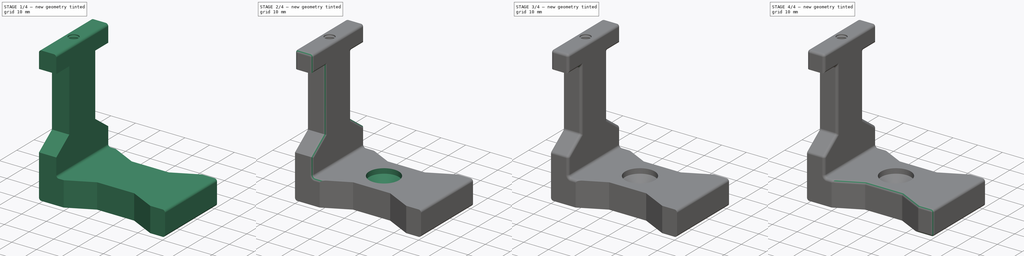
[diagram: build sequence overview — one tinted view per stage of 4, left to right]
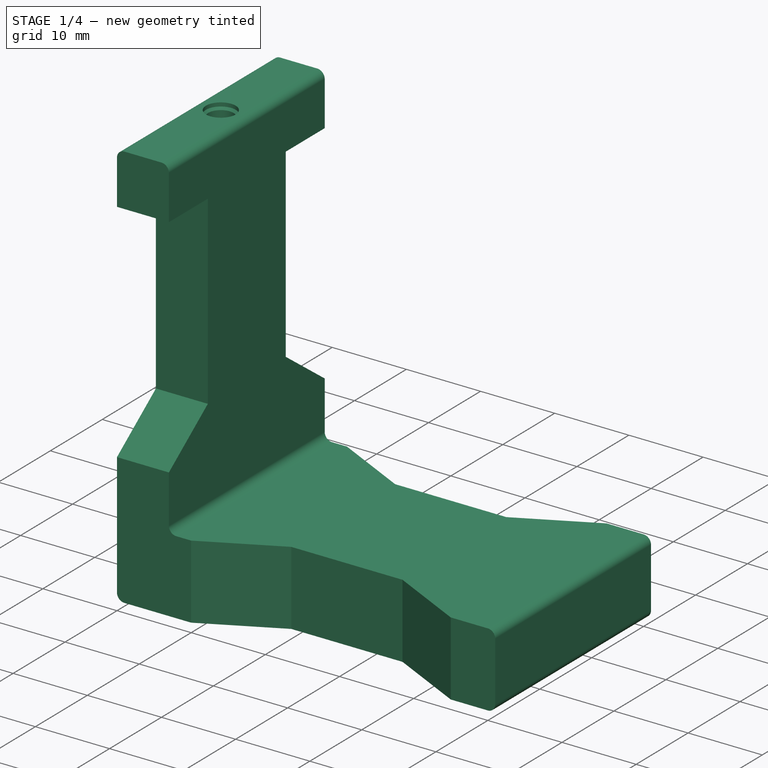
[diagram: stage 1 of 4 — iso view after this stage's code; geometry added in this stage tinted green]
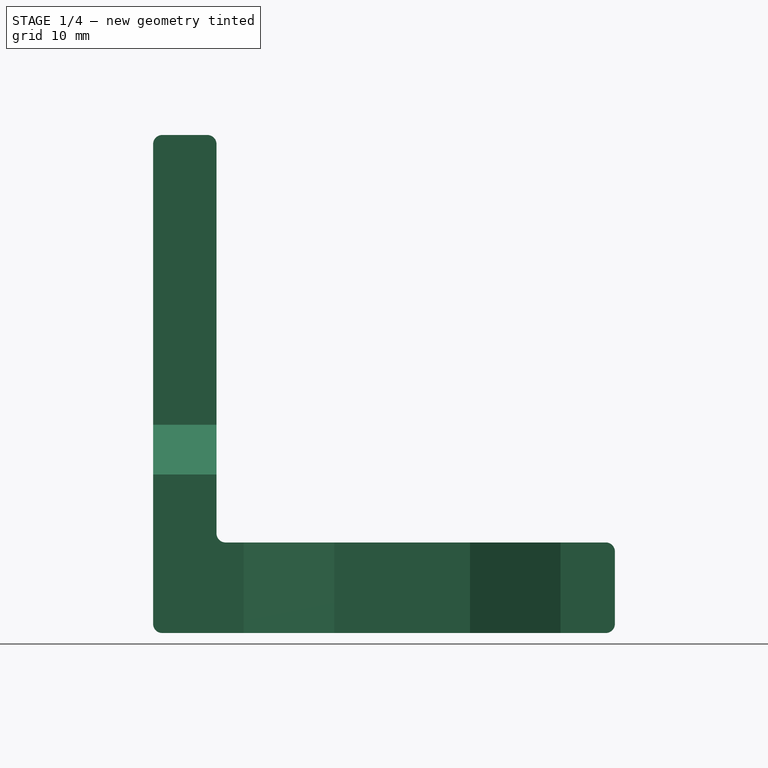
[diagram: stage 1 of 4 — front view after this stage's code; geometry added in this stage tinted green]
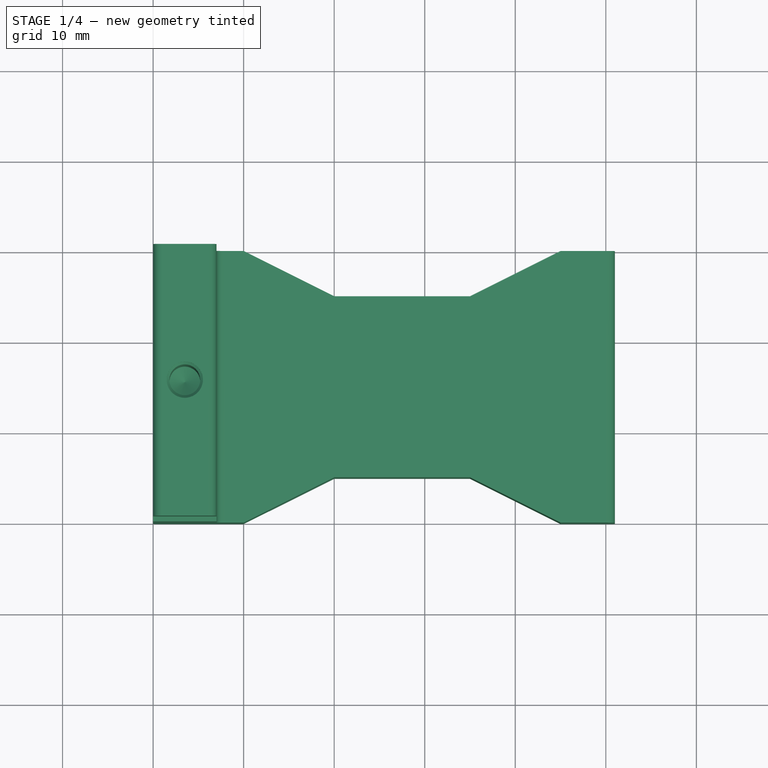
[diagram: stage 1 of 4 — top view after this stage's code; geometry added in this stage tinted green]
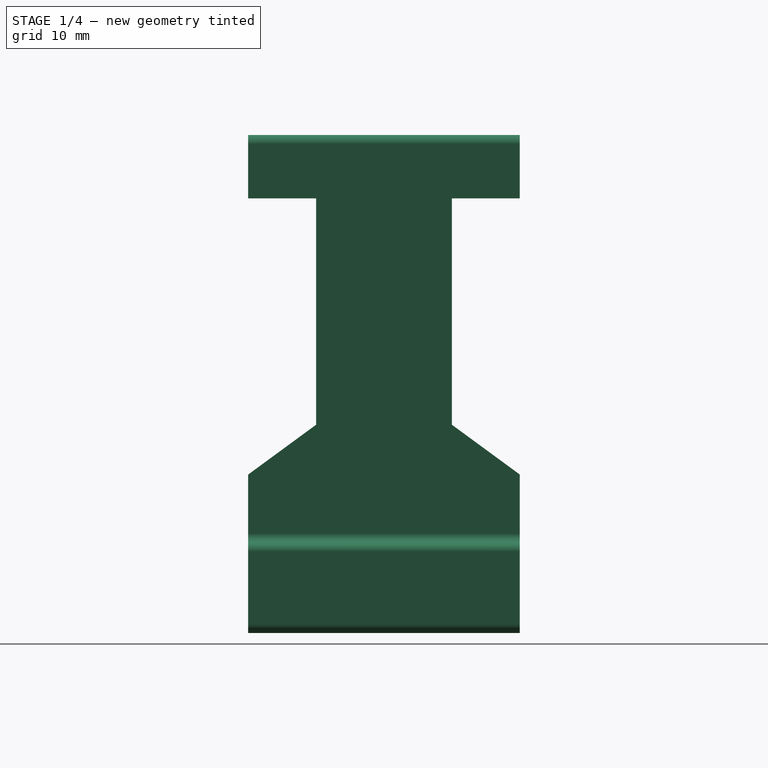
[diagram: stage 1 of 4 — right view after this stage's code; geometry added in this stage tinted green]
FCSTD DOCUMENT  (FreeCAD 0.21R33771 (Git))
Label: solow-wellhofer-connector-small
License: All rights reserved
LicenseURL: http://en.wikipedia.org/wiki/All_rights_reserved
objects: PartDesign::Fillet×9, Sketcher::SketchObject×5, PartDesign::Hole×2, PartDesign::Pocket×2, PartDesign::Pad×1, PartDesign::Body×1
note: 34 computed .brp shape members not serialized (recipe doc carries the construction recipe); baked Part::Feature solids carry a one-line shape summary decoded from their .brp

FEATURE [Sketcher::SketchObject] Sketch
  FullyConstrained = true
  MapMode = 5
  Placement = pos=(0,0,0) rot=(1,0,0;1.5708rad)
  Support = -> [XZ_Plane]
  sketch-geometry (12):
    g0: ArcOfCircle CenterX=50 CenterY=1 CenterZ=0 NormalX=0 NormalY=0 NormalZ=1 AngleXU=0 Radius=1 StartAngle=4.71239 EndAngle=6.28319
    g1: LineSegment StartX=51 StartY=1 StartZ=0 EndX=51 EndY=9 EndZ=0
    g2: ArcOfCircle CenterX=50 CenterY=9.00141 CenterZ=0 NormalX=0 NormalY=0 NormalZ=1 AngleXU=0 Radius=1 StartAngle=6.28178 EndAngle=7.90708
    g3: LineSegment StartX=49.9469 StartY=10 StartZ=0 EndX=8 EndY=10 EndZ=0
    g4: ArcOfCircle CenterX=8 CenterY=11 CenterZ=0 NormalX=0 NormalY=0 NormalZ=1 AngleXU=0 Radius=1 StartAngle=3.14159 EndAngle=4.71239
    g5: LineSegment StartX=7 StartY=11 StartZ=0 EndX=7 EndY=54 EndZ=0
    g6: ArcOfCircle CenterX=6 CenterY=54 CenterZ=0 NormalX=0 NormalY=0 NormalZ=1 AngleXU=0 Radius=1 StartAngle=6.28319 EndAngle=7.85398
    g7: LineSegment StartX=6 StartY=55 StartZ=0 EndX=1 EndY=55 EndZ=0
    g8: ArcOfCircle CenterX=1 CenterY=54 CenterZ=0 NormalX=0 NormalY=0 NormalZ=1 AngleXU=0 Radius=1 StartAngle=1.5708 EndAngle=3.14159
    g9: LineSegment StartX=6e-16 StartY=54 StartZ=0 EndX=2.4e-15 EndY=1 EndZ=0
    g10: ArcOfCircle CenterX=1 CenterY=1 CenterZ=0 NormalX=0 NormalY=0 NormalZ=1 AngleXU=0 Radius=1 StartAngle=3.14159 EndAngle=4.71239
    g11: LineSegment StartX=1 StartY=4.649e-13 StartZ=0 EndX=50 EndY=4.649e-13 EndZ=0
  constraints (39):
    c: Coincident(g0,g1)
    c: Vertical(g1)
    c: Coincident(g4,g5)
    c: Coincident(g6,g7)
    c: Horizontal(g7)
    c: Tangent(g7,g8) = -1.5708
    c: Tangent(g8,g9) = -1.5708
    c: Tangent(g9,g10) = -1.5708
    c: Coincident(g11,g10)
    c: Coincident(g11,g0)
    c: Horizontal(g11)
    c: Radius(g8) = 1
    c: DistanceY(g10,g-1) = 0
    c: DistanceY(g-1,g9) = 1
    c: DistanceX(g-1,g9) = 0
    c: DistanceX(g-1,g10) = 1
    c: DistanceX(g-1,g8) = 0
    c: DistanceX(g7,g7) = 5
    c: DistanceY(g-1,g8) = 54
    c: DistanceY(g0) = 1
    c: DistanceY(g0) = 1
    c: Radius(g0) = 1
    c: Coincident(g1,g2)
    c: DistanceX(g11,g11) = 49
    c: DistanceY(g6) = 54
    c: DistanceX(g-1,g6) = 6
    c: Coincident(g6,g5)
    c: DistanceX(g-1,g4) = 7
    c: DistanceX(g-1,g4) = 8
    c: DistanceY(g-1,g4) = 11
    c: DistanceY(g-1,g4) = 10
    c: Radius(g4) = 1
    c: Coincident(g4,g3)
    c: DistanceY(g5,g5) = 43
    c: DistanceY(g-1,g3) = 10
    c: Coincident(g3,g2)
    c: DistanceX(g-1,g2) = 50
    c: DistanceY(g-1,g1) = 9
    c: Radius(g2) = 1
FEATURE [PartDesign::Pad] Pad
  Direction = (0,-1,-2e-16)
  Length = 30
  Length2 = 10
  Placement = pos=(0,0,0) rot=(1,0,0;1.5708rad)
  Profile = -> Sketch
  ReferenceAxis = -> Sketch [N_Axis]
  Type = 0
FEATURE [Sketcher::SketchObject] Sketch001
  FullyConstrained = true
  MapMode = 5
  Placement = pos=(0,-1.2e-14,55) rot=(0,0,1;3.14159rad)
  sketch-geometry (1):
    g0: Circle CenterX=-3.5 CenterY=15 CenterZ=0 NormalX=0 NormalY=0 NormalZ=1 AngleXU=0 Radius=1.5
  constraints (3):
    c: DistanceX(g0,g-1) = 3.5
    c: DistanceY(g0) = 15
    c: Diameter(g0) = 3
FEATURE [PartDesign::Hole] Hole
  BaseFeature = -> Pad
  CustomThreadClearance = 0
  Depth = 15
  DepthType = 0
  Diameter = 3.4
  DrillForDepth = false
  DrillPoint = 1
  DrillPointAngle = 118
  HoleCutCountersinkAngle = 90
  HoleCutCustomValues = false
  HoleCutDepth = 0.5
  HoleCutDiameter = 4
  HoleCutType = 3
  ModelThread = false
  Placement = pos=(0,0,0) rot=(1,0,0;1.5708rad)
  Profile = -> Sketch001
  Tapered = false
  TaperedAngle = 90
  ThreadClass = 0
  ThreadDepth = 15
  ThreadDepthType = 0
  ThreadDirection = 0
  ThreadFit = 0
  ThreadSize = 9
  ThreadType = 1
  Threaded = false
  UseCustomThreadClearance = false
FEATURE [Sketcher::SketchObject] Sketch002
  FullyConstrained = true
  MapMode = 5
  Placement = pos=(7,0,0) rot=(0.707107,0,0.707107;3.14159rad)
  sketch-geometry (8):
    g0: LineSegment StartX=17.5 StartY=0 StartZ=0 EndX=23 EndY=7.5 EndZ=0
    g1: LineSegment StartX=23 StartY=7.5 StartZ=0 EndX=48 EndY=7.5 EndZ=0
    g2: LineSegment StartX=48 StartY=7.5 StartZ=0 EndX=48 EndY=0 EndZ=0
    g3: LineSegment StartX=17.5 StartY=0 StartZ=0 EndX=48 EndY=0 EndZ=0
    g4: LineSegment StartX=48 StartY=30 StartZ=0 EndX=17.5 EndY=30 EndZ=0
    g5: LineSegment StartX=17.5 StartY=30 StartZ=0 EndX=23 EndY=22.5 EndZ=0
    g6: LineSegment StartX=23 StartY=22.5 StartZ=0 EndX=48 EndY=22.5 EndZ=0
    g7: LineSegment StartX=48 StartY=22.5 StartZ=0 EndX=48 EndY=30 EndZ=0
  constraints (24):
    c: PointOnObject(g0,g-1)
    c: Coincident(g1,g0)
    c: Horizontal(g1)
    c: PointOnObject(g2,g-1)
    c: Coincident(g3,g0)
    c: Coincident(g3,g2)
    c: Horizontal(g4)
    c: Horizontal(g6)
    c: Coincident(g7,g4)
    c: DistanceY(g-1,g4) = 30
    c: DistanceY(g-1,g5) = 22.5
    c: DistanceY(g0,g0) = 7.5
    c: Coincident(g5,g6)
    c: Coincident(g6,g7)
    c: Coincident(g1,g2)
    c: DistanceX(g-1,g0) = 17.5
    c: DistanceX(g-1,g4) = 17.5
    c: Coincident(g5,g4)
    c: DistanceX(g5,g6) = 25
    c: DistanceX(g0,g1) = 25
    c: DistanceX(g-1,g1) = 48
    c: DistanceX(g-1,g6) = 48
    c: DistanceX(g-1,g2) = 48
    c: DistanceX(g-1,g4) = 48
FEATURE [Sketcher::SketchObject] Sketch003
  FullyConstrained = true
  MapMode = 5
  Placement = pos=(1.5e-13,-2e-15,10) rot=(0,0,1;3.14159rad)
  sketch-geometry (8):
    g0: LineSegment StartX=-10 StartY=0 StartZ=0 EndX=-20 EndY=5 EndZ=0
    g1: LineSegment StartX=-20 StartY=5 StartZ=0 EndX=-35 EndY=5 EndZ=0
    g2: LineSegment StartX=-35 StartY=5 StartZ=0 EndX=-45 EndY=0 EndZ=0
    g3: LineSegment StartX=-45 StartY=0 StartZ=0 EndX=-10 EndY=0 EndZ=0
    g4: LineSegment StartX=-10 StartY=30 StartZ=0 EndX=-20 EndY=25 EndZ=0
    g5: LineSegment StartX=-20 StartY=25 StartZ=0 EndX=-35 EndY=25 EndZ=0
    g6: LineSegment StartX=-35 StartY=25 StartZ=0 EndX=-45 EndY=30 EndZ=0
    g7: LineSegment StartX=-45 StartY=30 StartZ=0 EndX=-10 EndY=30 EndZ=0
  constraints (24):
    c: PointOnObject(g0,g-1)
    c: Coincident(g1,g0)
    c: Horizontal(g1)
    c: Coincident(g2,g1)
    c: PointOnObject(g2,g-1)
    c: Coincident(g3,g2)
    c: Coincident(g3,g0)
    c: Horizontal(g5)
    c: Coincident(g6,g5)
    c: Coincident(g7,g4)
    c: Horizontal(g7)
    c: DistanceX(g0,g-1) = 10
    c: DistanceX(g4,g-1) = 10
    c: DistanceX(g4,g-1) = 20
    c: DistanceX(g0,g-1) = 20
    c: DistanceX(g1,g0) = 15
    c: DistanceX(g5,g4) = 15
    c: Coincident(g5,g4)
    c: DistanceX(g2,g-1) = 45
    c: DistanceX(g6,g-1) = 45
    c: Coincident(g6,g7)
    c: DistanceY(g-1,g0) = 5
    c: DistanceY(g-1,g4) = 30
    c: DistanceY(g-1,g4) = 25
FEATURE [Sketcher::SketchObject] Sketch004
  FullyConstrained = true
  MapMode = 5
  Placement = pos=(1.5e-13,-2e-15,10) rot=(0,0,1;3.14159rad)
  sketch-geometry (1):
    g0: Circle CenterX=-25.5 CenterY=15 CenterZ=0 NormalX=0 NormalY=0 NormalZ=1 AngleXU=0 Radius=3
  constraints (3):
    c: DistanceX(g0,g-1) = 25.5
    c: DistanceY(g-1,g0) = 15
    c: Diameter(g0) = 6
FEATURE [PartDesign::Pocket] Pocket
  BaseFeature = -> Hole
  Direction = (-1,0,2e-16)
  Length = 5
  Length2 = 5
  Placement = pos=(0,0,0) rot=(1,0,0;1.5708rad)
  Profile = -> Sketch002
  ReferenceAxis = -> Sketch002 [N_Axis]
  Type = 1
FEATURE [PartDesign::Pocket] Pocket001
  BaseFeature = -> Pocket
  Direction = (-1.5e-14,0,-1)
  Length = 5
  Length2 = 5
  Placement = pos=(0,0,0) rot=(1,0,0;1.5708rad)
  Profile = -> Sketch003
  ReferenceAxis = -> Sketch003 [N_Axis]
  Type = 1
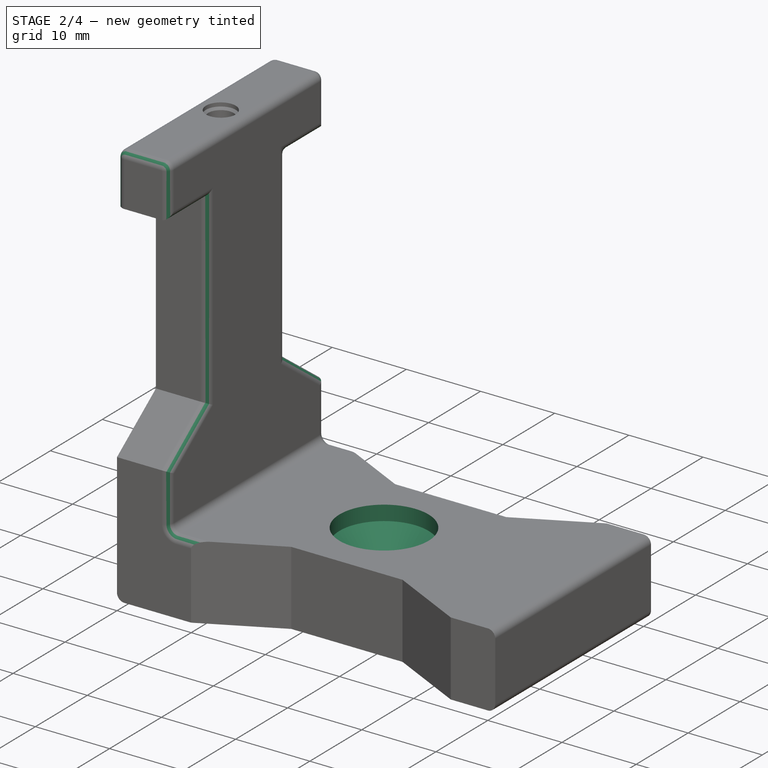
[diagram: stage 2 of 4 — iso view after this stage's code; geometry added in this stage tinted green]
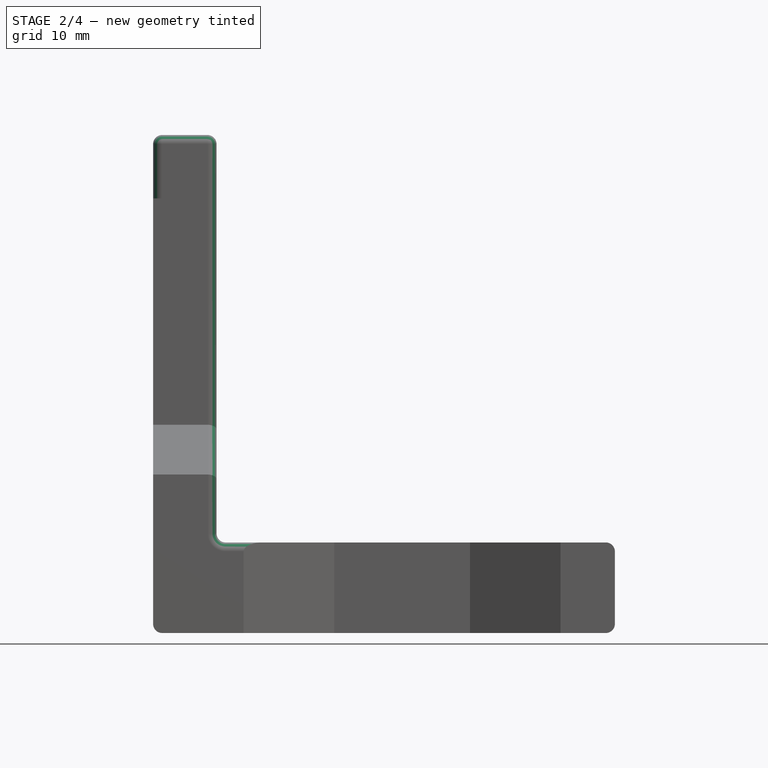
[diagram: stage 2 of 4 — front view after this stage's code; geometry added in this stage tinted green]
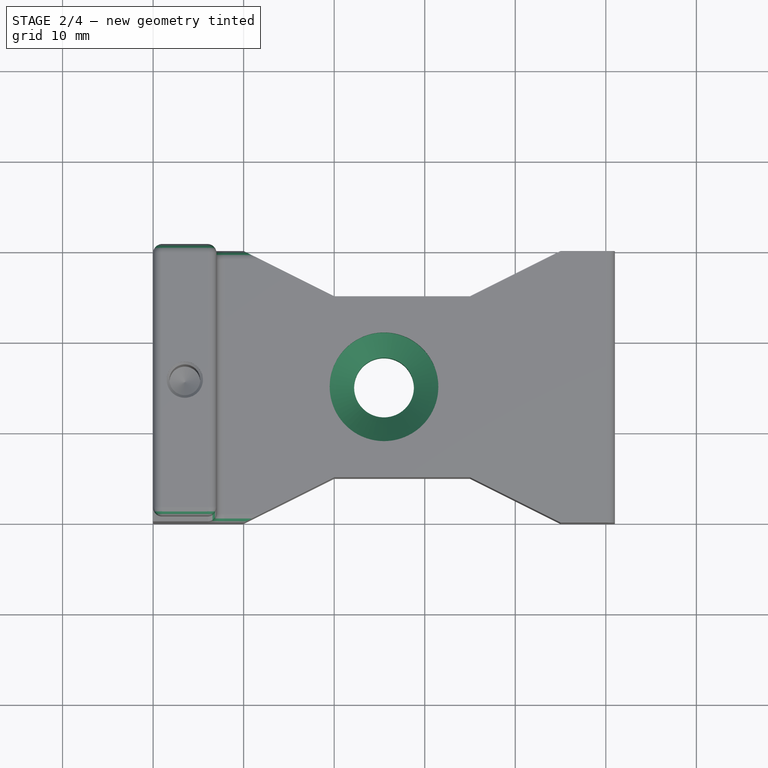
[diagram: stage 2 of 4 — top view after this stage's code; geometry added in this stage tinted green]
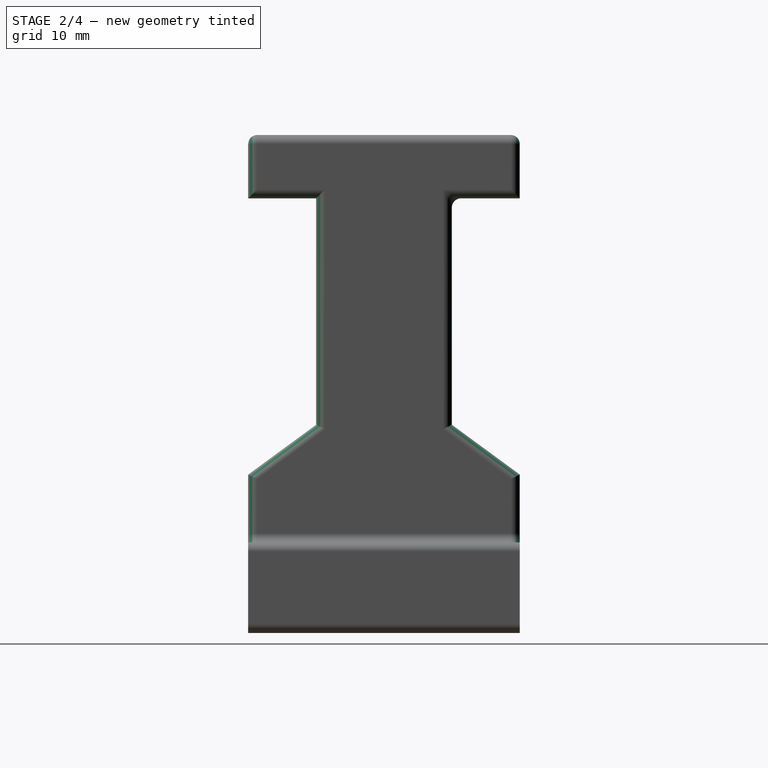
[diagram: stage 2 of 4 — right view after this stage's code; geometry added in this stage tinted green]
FEATURE [PartDesign::Hole] Hole001
  BaseFeature = -> Pocket001
  CustomThreadClearance = 0
  Depth = 163.183
  DepthType = 1
  Diameter = 6.6
  DrillForDepth = false
  DrillPoint = 1
  DrillPointAngle = 118
  HoleCutCountersinkAngle = 90
  HoleCutCustomValues = false
  HoleCutDepth = 2
  HoleCutDiameter = 12
  HoleCutType = 3
  ModelThread = false
  Placement = pos=(0,0,0) rot=(1,0,0;1.5708rad)
  Profile = -> Sketch004
  Tapered = false
  TaperedAngle = 90
  ThreadClass = 0
  ThreadDepth = 163.183
  ThreadDepthType = 0
  ThreadDirection = 0
  ThreadFit = 0
  ThreadSize = 14
  ThreadType = 1
  Threaded = false
  UseCustomThreadClearance = false
FEATURE [PartDesign::Fillet] Fillet
  Base = -> Hole001 [Edge64,Edge63,Edge59,Edge58,Edge57,Edge65,Edge40,Edge29,Edge62,Edge60]
  BaseFeature = -> Hole001
  Placement = pos=(0,0,0) rot=(1,0,0;1.5708rad)
  Radius = 1
  SupportTransform = false
  UseAllEdges = false
FEATURE [PartDesign::Fillet] Fillet001
  Base = -> Fillet [Edge91]
  BaseFeature = -> Fillet
  Placement = pos=(0,0,0) rot=(1,0,0;1.5708rad)
  Radius = 1
  SupportTransform = false
  UseAllEdges = false
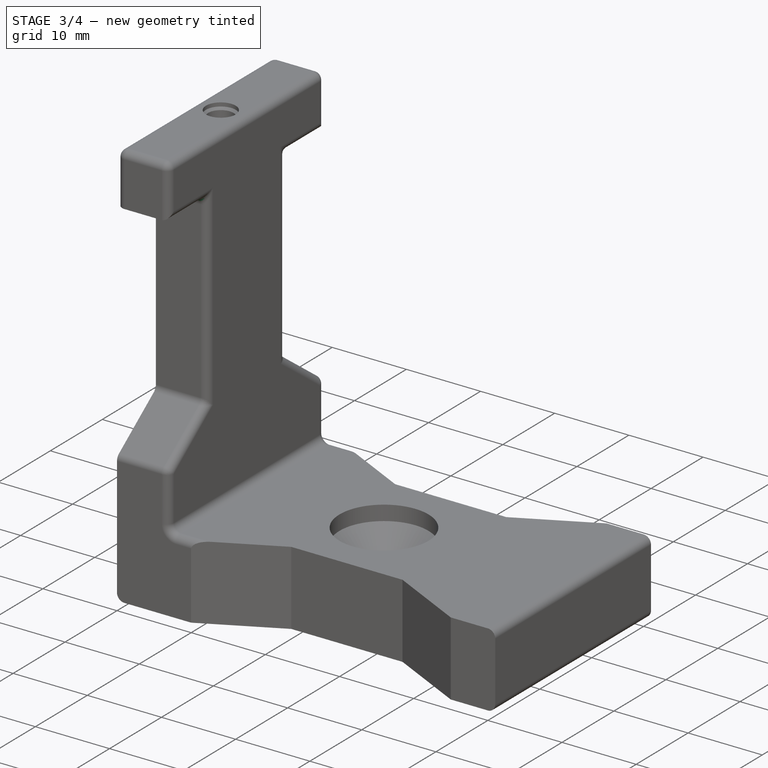
[diagram: stage 3 of 4 — iso view after this stage's code; geometry added in this stage tinted green]
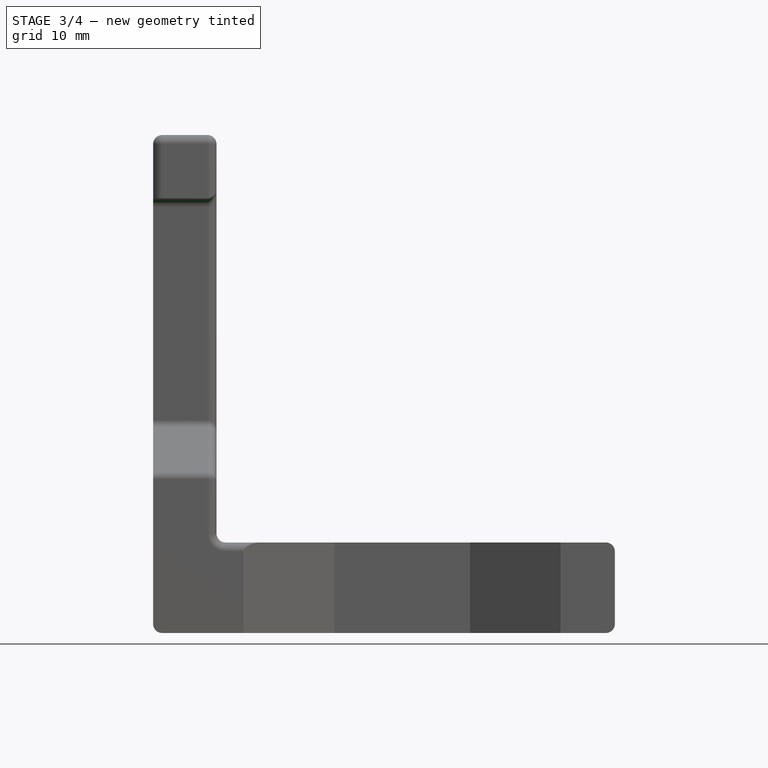
[diagram: stage 3 of 4 — front view after this stage's code; geometry added in this stage tinted green]
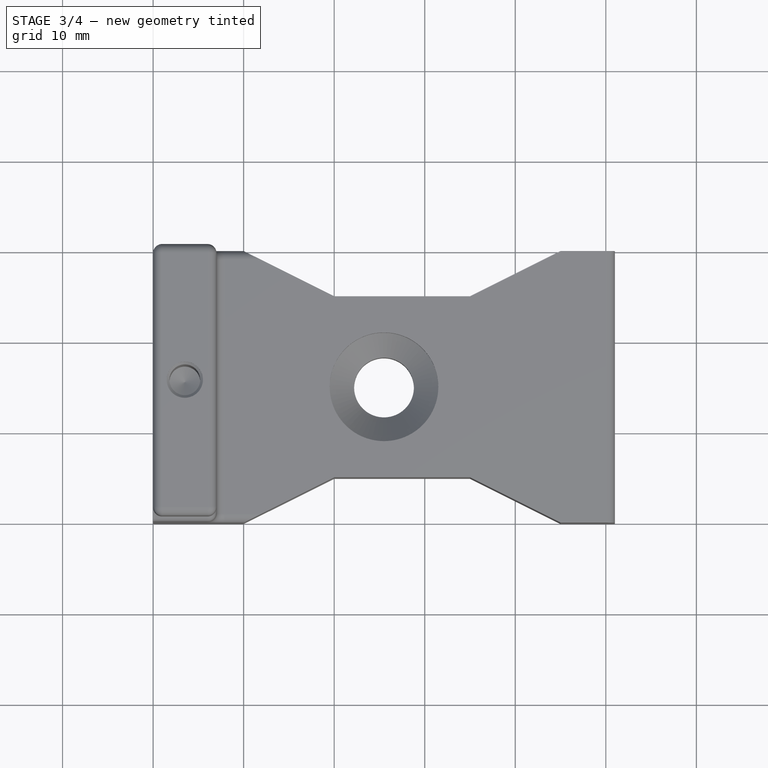
[diagram: stage 3 of 4 — top view after this stage's code; geometry added in this stage tinted green]
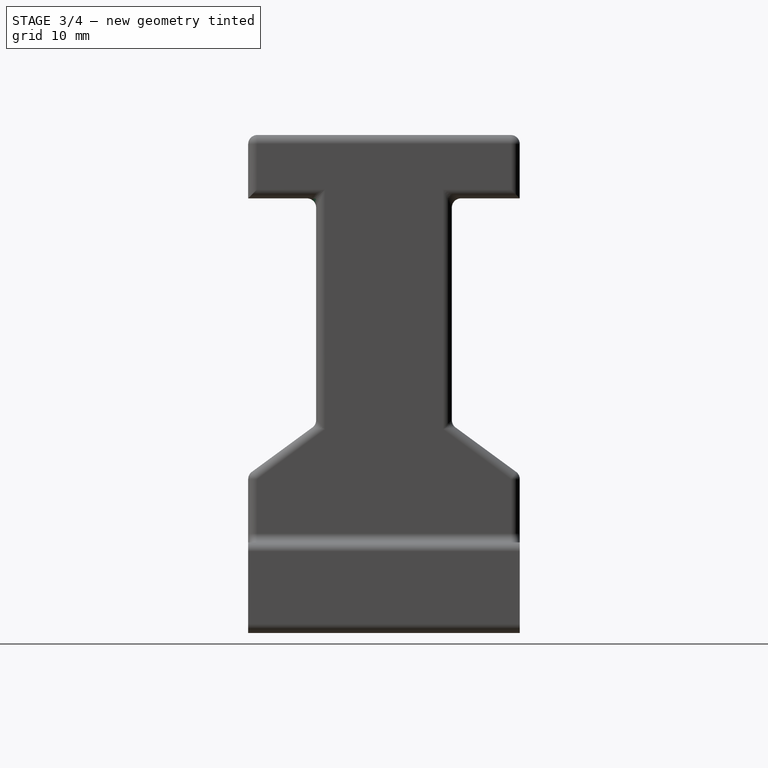
[diagram: stage 3 of 4 — right view after this stage's code; geometry added in this stage tinted green]
FEATURE [PartDesign::Fillet] Fillet002
  Base = -> Fillet001 [Edge40]
  BaseFeature = -> Fillet001
  Placement = pos=(0,0,0) rot=(1,0,0;1.5708rad)
  Radius = 1
  SupportTransform = false
  UseAllEdges = false
FEATURE [PartDesign::Fillet] Fillet003
  Base = -> Fillet002 [Edge53,Edge51]
  BaseFeature = -> Fillet002
  Placement = pos=(0,0,0) rot=(1,0,0;1.5708rad)
  Radius = 1
  SupportTransform = false
  UseAllEdges = false
FEATURE [PartDesign::Fillet] Fillet004
  Base = -> Fillet003 [Edge38,Edge35]
  BaseFeature = -> Fillet003
  Placement = pos=(0,0,0) rot=(1,0,0;1.5708rad)
  Radius = 1
  SupportTransform = false
  UseAllEdges = false
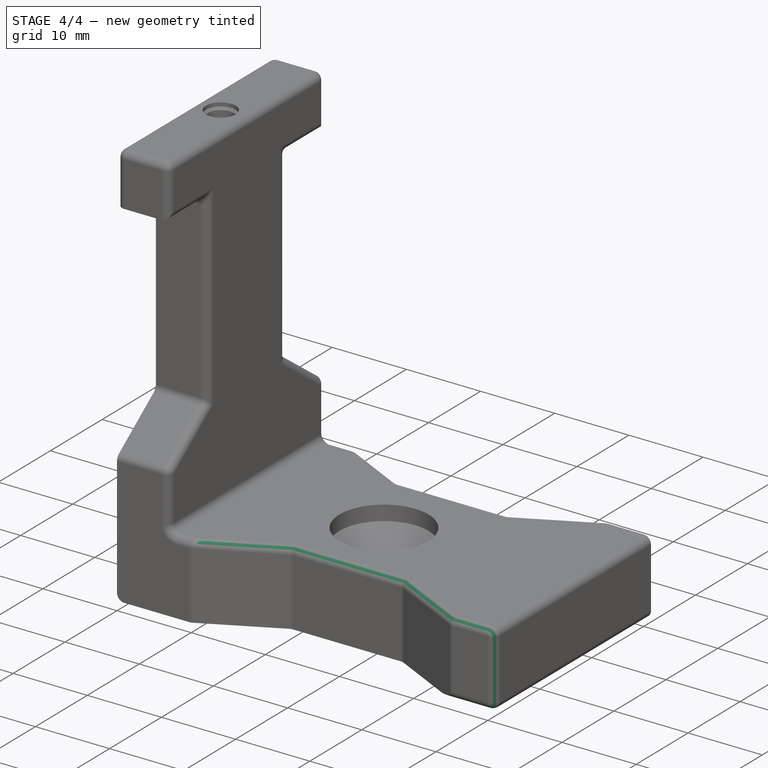
[diagram: stage 4 of 4 — iso view after this stage's code; geometry added in this stage tinted green]
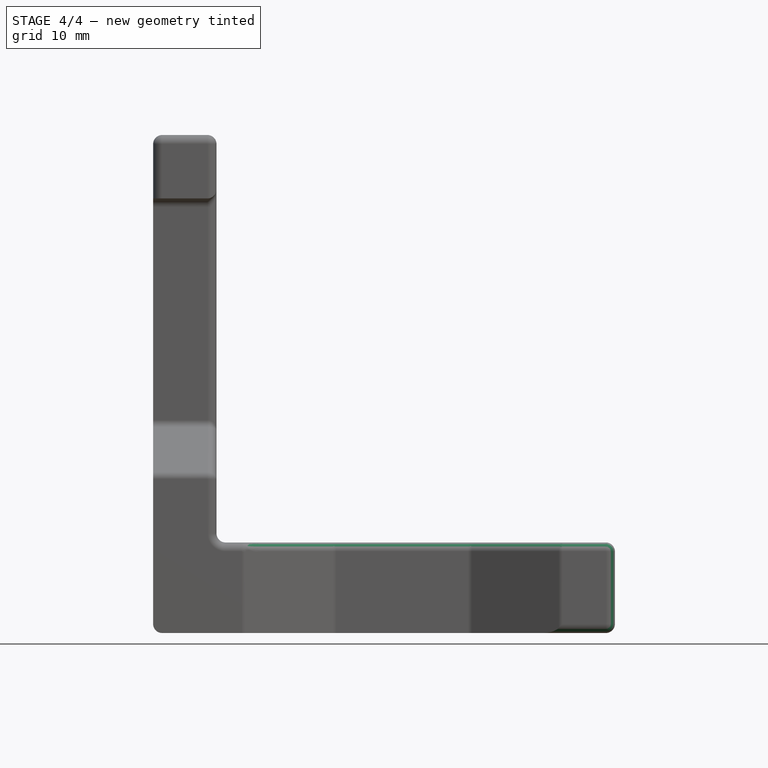
[diagram: stage 4 of 4 — front view after this stage's code; geometry added in this stage tinted green]
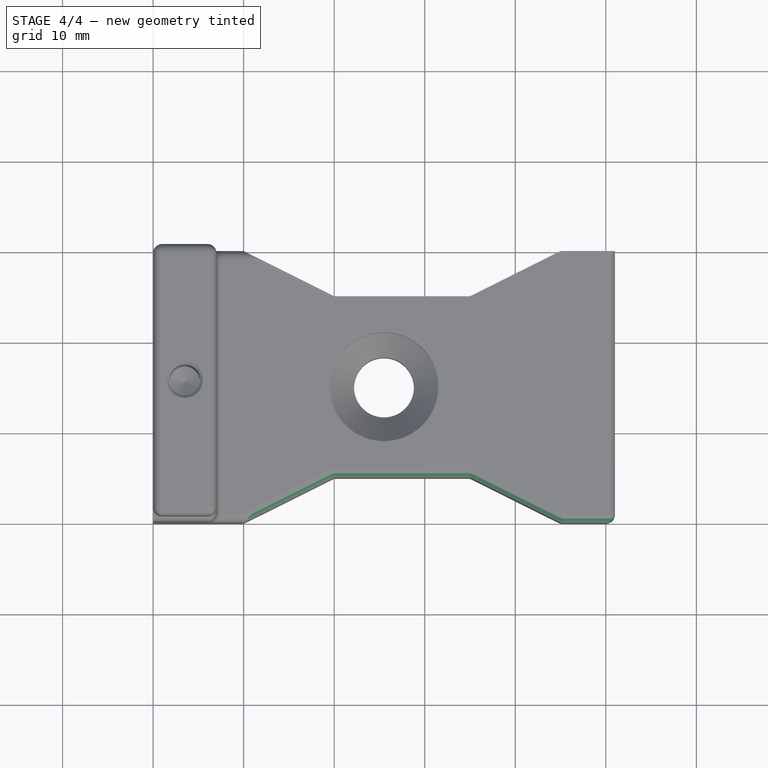
[diagram: stage 4 of 4 — top view after this stage's code; geometry added in this stage tinted green]
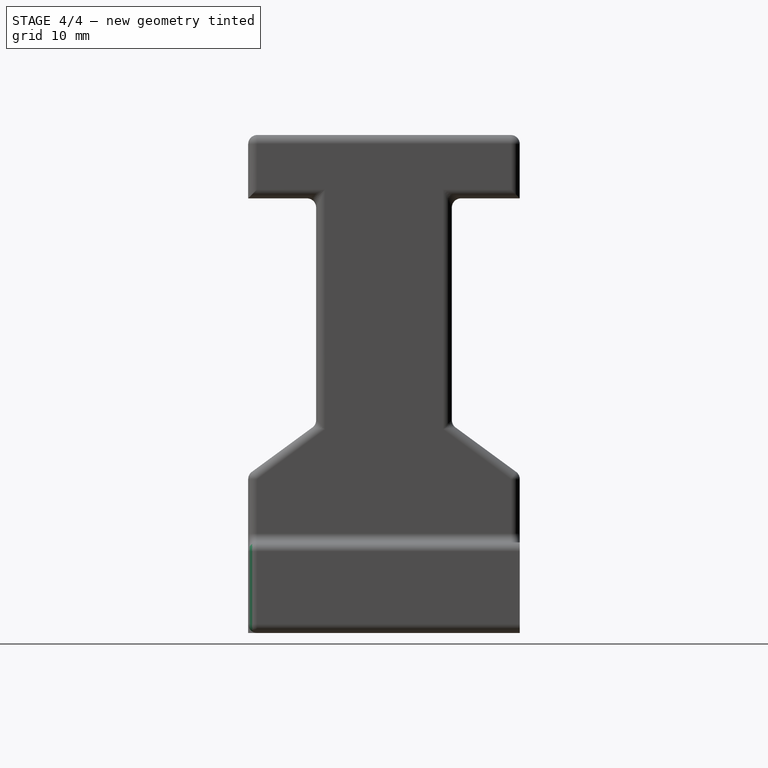
[diagram: stage 4 of 4 — right view after this stage's code; geometry added in this stage tinted green]
FEATURE [PartDesign::Fillet] Fillet005
  Base = -> Fillet004 [Edge24,Edge75,Edge144,Edge150,Edge153,Edge74,Edge140,Edge142,Edge141]
  BaseFeature = -> Fillet004
  Placement = pos=(0,0,0) rot=(1,0,0;1.5708rad)
  Radius = 1
  SupportTransform = false
  UseAllEdges = false
FEATURE [PartDesign::Fillet] Fillet006
  Base = -> Fillet005 [Edge89,Edge87,Edge85,Edge81,Edge92]
  BaseFeature = -> Fillet005
  Placement = pos=(0,0,0) rot=(1,0,0;1.5708rad)
  Radius = 1
  SupportTransform = false
  UseAllEdges = false
FEATURE [PartDesign::Fillet] Fillet007
  Base = -> Fillet005 [Edge60,Edge62,Edge64,Edge66]
  BaseFeature = -> Fillet005
  Placement = pos=(0,0,0) rot=(1,0,0;1.5708rad)
  Radius = 1
  SupportTransform = false
  UseAllEdges = false
FEATURE [PartDesign::Fillet] Fillet008
  Base = -> Fillet005 [Edge86,Edge83,Edge60,Edge62,Edge64,Edge89,Edge94]
  BaseFeature = -> Fillet005
  Placement = pos=(0,0,0) rot=(1,0,0;1.5708rad)
  Radius = 1
  SupportTransform = false
  UseAllEdges = false
FEATURE [PartDesign::Body] Body
  Group = -> [Sketch,Pad,Sketch001,Hole,Sketch002,Sketch003,Sketch004,Pocket,Pocket001,Hole001,Fillet,Fillet001,Fillet002,Fillet003,Fillet004,Fillet005,Fillet006,Fillet007,Fillet008]
  Origin = -> Origin
  Tip = -> Fillet008
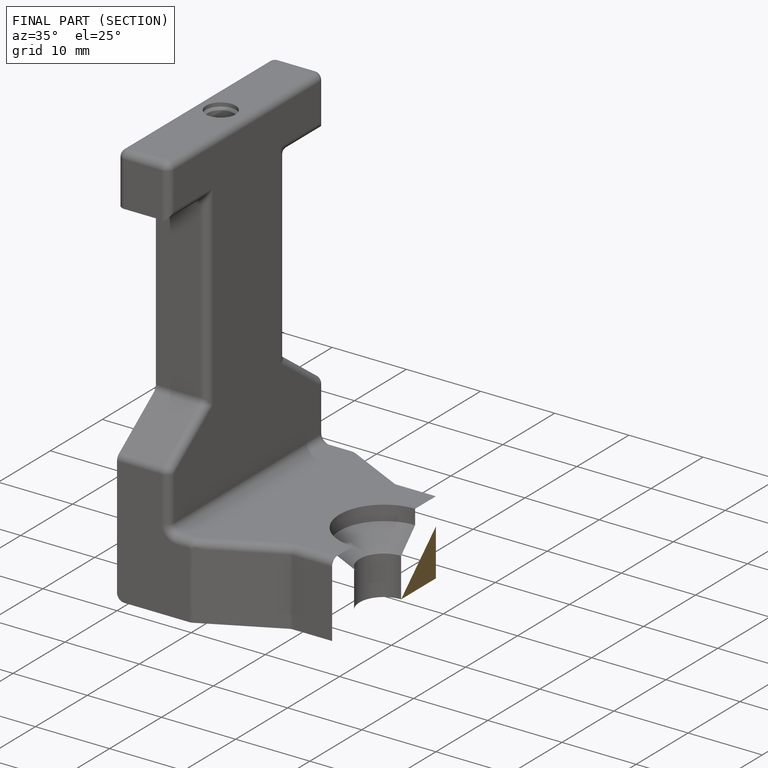
[diagram: finished part — half-section view (interior)]
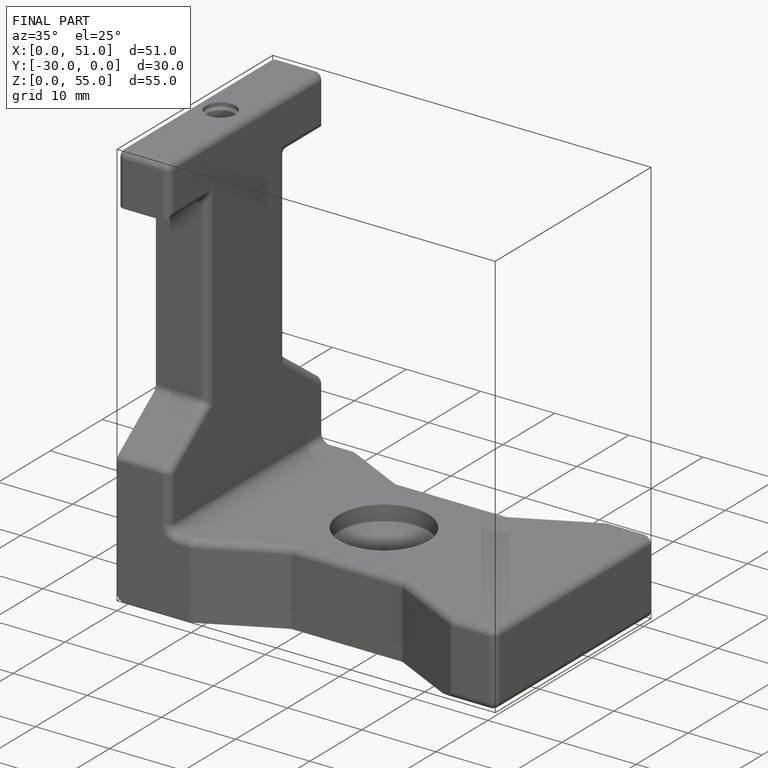
[diagram: finished part — iso view with bounding-box wireframe]
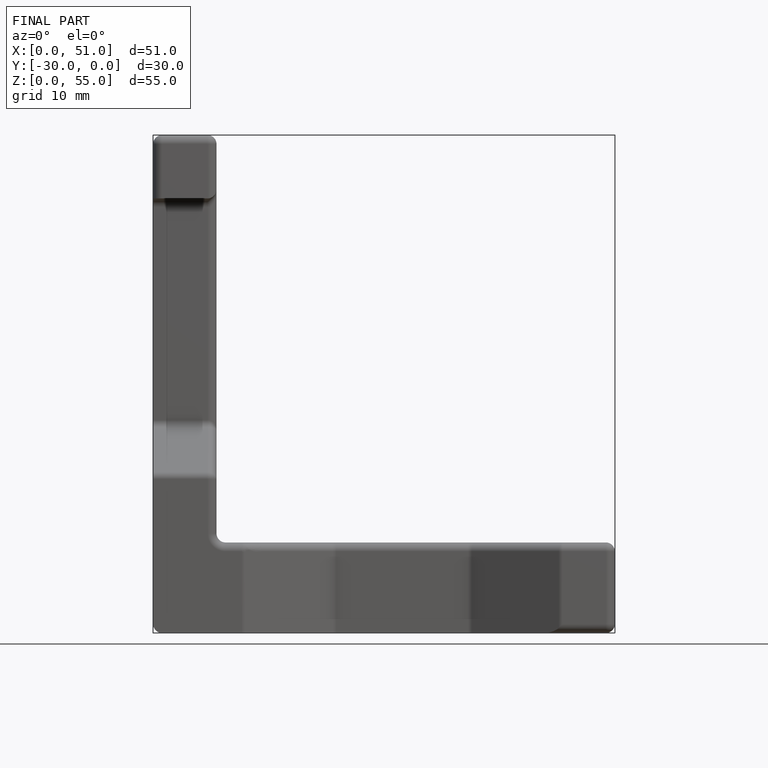
[diagram: finished part — front view with bounding-box wireframe]
